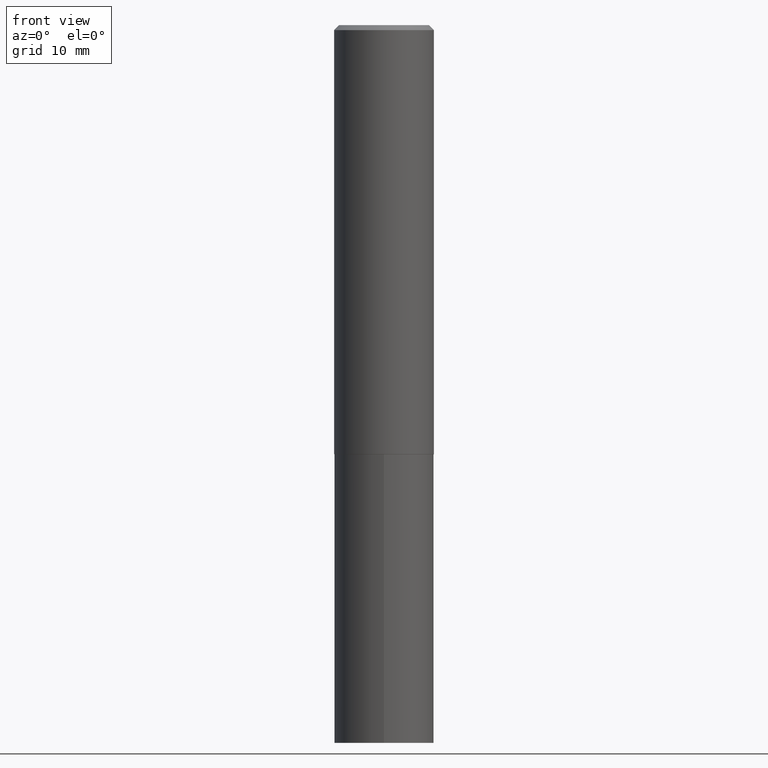
[diagram: clean part render]
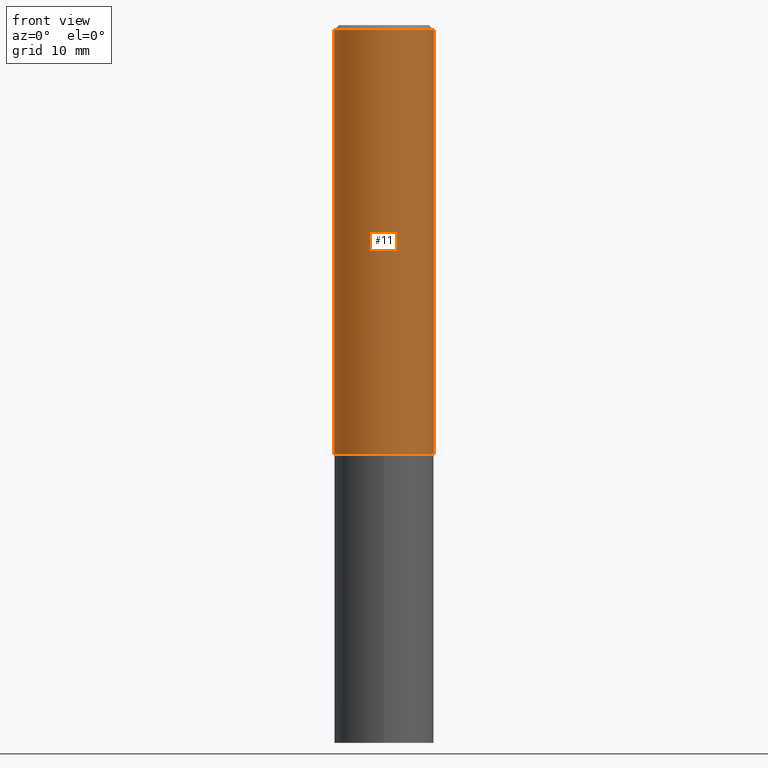
[diagram: same view with one face highlighted and labeled with its STEP entity id]
A machine part, front view. The second image highlights one B-rep face of the part: STEP entity #11.
In plain terms, the highlighted cylindrical surface (partial cylindrical patch) has radius 7.9997 mm, axis along (-0, 0, 1).
Its self-contained STEP definition (entity closure, byte-faithful):
#11 = ADVANCED_FACE ( 'NONE', ( #65 ), #176, .T. ) ;
#23 = EDGE_CURVE ( 'NONE', #64, #61, #353, .T. ) ;
#38 = ORIENTED_EDGE ( 'NONE', *, *, #23, .F. ) ;
#39 = ORIENTED_EDGE ( 'NONE', *, *, #125, .T. ) ;
#40 = AXIS2_PLACEMENT_3D ( 'NONE', #301, #79, #47 ) ;
#41 = DIRECTION ( 'NONE',  ( -2.445468806185136877E-29, 3.491481338843145188E-15, 1.000000000000000000 ) ) ;
#47 = DIRECTION ( 'NONE',  ( 1.000000000000000000, -6.982962677686264344E-15, 0.000000000000000000 ) ) ;
#57 = EDGE_CURVE ( 'NONE', #64, #198, #204, .T. ) ;
#61 = VERTEX_POINT ( 'NONE', #105 ) ;
#64 = VERTEX_POINT ( 'NONE', #208 ) ;
#65 = FACE_OUTER_BOUND ( 'NONE', #203, .T. ) ;
#79 = DIRECTION ( 'NONE',  ( -2.445468806185136597E-29, 3.491481338843145583E-15, 1.000000000000000000 ) ) ;
#93 = AXIS2_PLACEMENT_3D ( 'NONE', #291, #123, #230 ) ;
#105 = CARTESIAN_POINT ( 'NONE',  ( -0.3149500000000000077, -2.540848875164704755E-15, -0.03125000000000017347 ) ) ;
#107 = VECTOR ( 'NONE', #360, 39.37007874015748143 ) ;
#108 = VECTOR ( 'NONE', #41, 39.37007874015748143 ) ;
#123 = DIRECTION ( 'NONE',  ( -2.445468806185136597E-29, 3.491481338843145583E-15, 1.000000000000000000 ) ) ;
#125 = EDGE_CURVE ( 'NONE', #198, #170, #131, .T. ) ;
#131 = LINE ( 'NONE', #356, #107 ) ;
#156 = ORIENTED_EDGE ( 'NONE', *, *, #234, .F. ) ;
#167 = CARTESIAN_POINT ( 'NONE',  ( 7.642090019328594780E-31, -1.091087918388489034E-16, -0.03125000000000017347 ) ) ;
#170 = VERTEX_POINT ( 'NONE', #322 ) ;
#176 = CYLINDRICAL_SURFACE ( 'NONE', #93, 0.3149500000000001743 ) ;
#181 = CARTESIAN_POINT ( 'NONE',  ( 0.3149500000000002298, -1.164758174638072619E-14, -2.706099999999999284 ) ) ;
#198 = VERTEX_POINT ( 'NONE', #181 ) ;
#203 = EDGE_LOOP ( 'NONE', ( #38, #355, #39, #156 ) ) ;
#204 = CIRCLE ( 'NONE', #40, 0.3149500000000002298 ) ;
#207 = CARTESIAN_POINT ( 'NONE',  ( -0.3149500000000001743, 2.237854346276436774E-15, -1.549218606675783237E-29 ) ) ;
#208 = CARTESIAN_POINT ( 'NONE',  ( -0.3149500000000002298, -7.210443304766998761E-15, -2.706099999999999284 ) ) ;
#219 = AXIS2_PLACEMENT_3D ( 'NONE', #167, #278, #274 ) ;
#223 = CIRCLE ( 'NONE', #219, 0.3149500000000000077 ) ;
#230 = DIRECTION ( 'NONE',  ( 1.000000000000000000, -6.982962677686265922E-15, 4.876176775795935232E-29 ) ) ;
#234 = EDGE_CURVE ( 'NONE', #61, #170, #223, .T. ) ;
#274 = DIRECTION ( 'NONE',  ( 1.000000000000000000, -6.982962677686266711E-15, 0.000000000000000000 ) ) ;
#278 = DIRECTION ( 'NONE',  ( -2.445468806185136597E-29, 3.491481338843145583E-15, 1.000000000000000000 ) ) ;
#291 = CARTESIAN_POINT ( 'NONE',  ( 0.000000000000000000, 0.000000000000000000, 0.000000000000000000 ) ) ;
#301 = CARTESIAN_POINT ( 'NONE',  ( 6.617683136417595833E-29, -9.448297651043434746E-15, -2.706099999999999284 ) ) ;
#322 = CARTESIAN_POINT ( 'NONE',  ( 0.3149500000000000077, -2.308392887176138577E-15, -0.03125000000000017347 ) ) ;
#353 = LINE ( 'NONE', #207, #108 ) ;
#355 = ORIENTED_EDGE ( 'NONE', *, *, #57, .T. ) ;
#356 = CARTESIAN_POINT ( 'NONE',  ( 0.3149500000000001743, -2.199284095337290660E-15, 1.535751875536930690E-29 ) ) ;
#360 = DIRECTION ( 'NONE',  ( -2.445468806185136877E-29, 3.491481338843145188E-15, 1.000000000000000000 ) ) ;